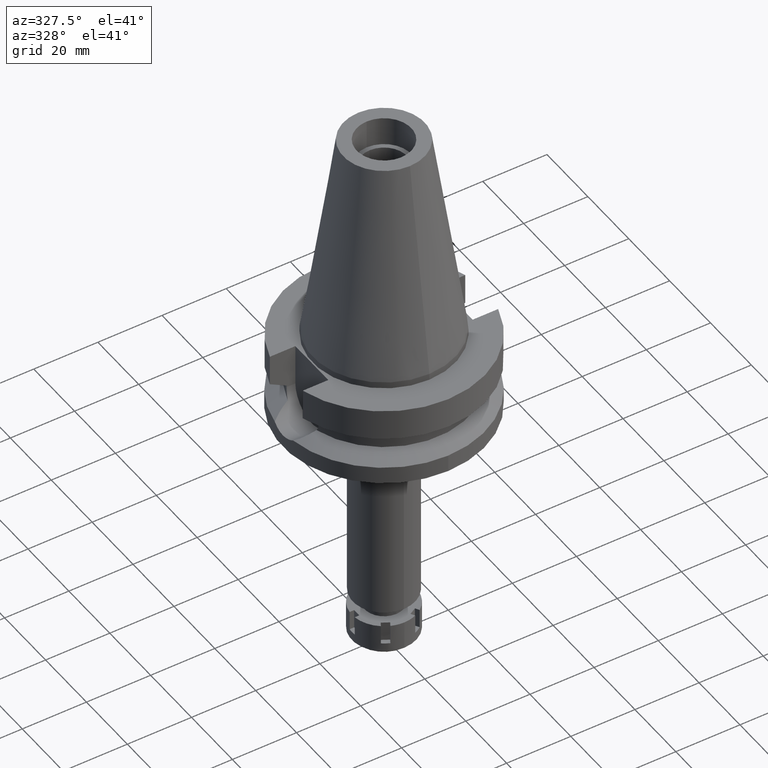
[diagram: clean part render]
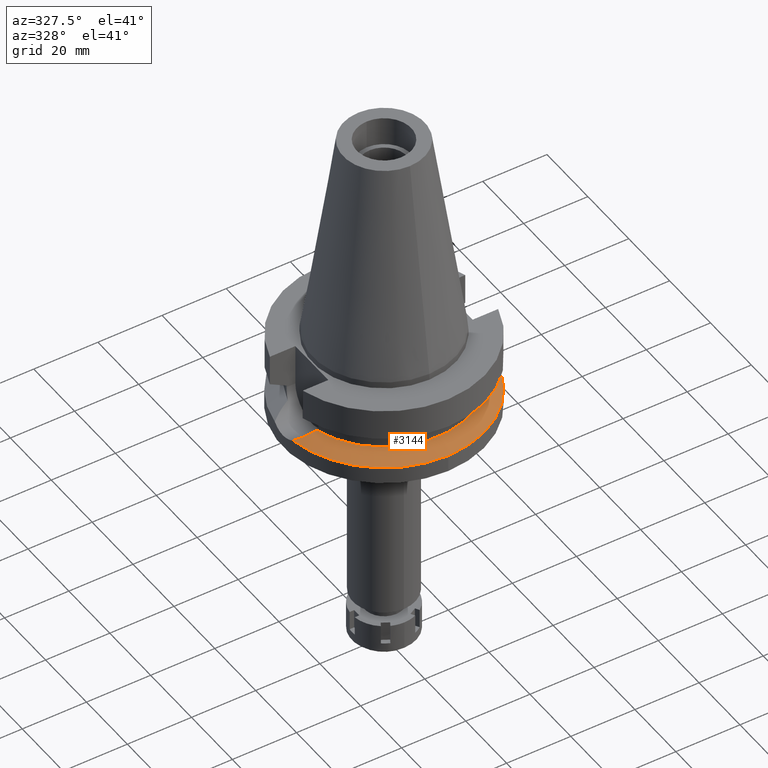
[diagram: same view with one face highlighted and labeled with its STEP entity id]
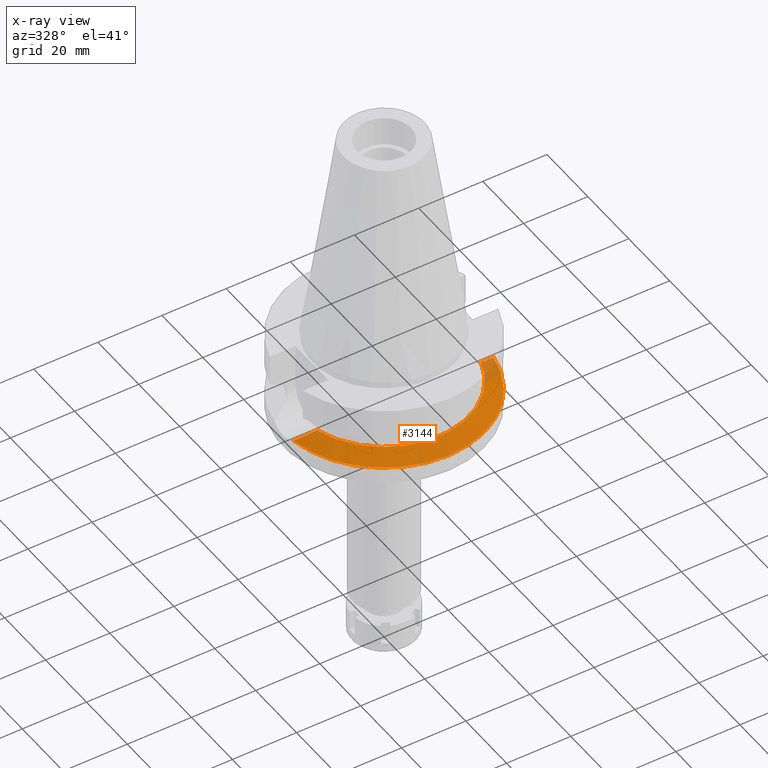
[diagram: x-ray of the same camera — body ghosted, the highlighted face saturated]
A machine part, auxiliary view. The second image highlights one B-rep face of the part: STEP entity #3144.
The next image is the same camera in x-ray: the body ghosted, the highlighted face saturated — about 6% of this face is hidden behind the body in this view.
In plain terms, the highlighted conical surface has half-angle 60 deg.
Its self-contained STEP definition (entity closure, byte-faithful):
#14 = CARTESIAN_POINT ( 'NONE',  ( 27.73420452145530746, -6.390199378870547342, -19.87732852334688260 ) ) ;
#29 = CARTESIAN_POINT ( 'NONE',  ( 28.51705538140707930, -6.035308759194434991, -20.27697739335165394 ) ) ;
#74 = CARTESIAN_POINT ( 'NONE',  ( 30.83537404011412519, -4.746233548673917113, -21.45955706954531550 ) ) ;
#324 = CARTESIAN_POINT ( 'NONE',  ( 28.50848302580978455, -6.039202948236852997, -20.27260121947567484 ) ) ;
#397 = CARTESIAN_POINT ( 'NONE',  ( 0.0000000000000000000, 0.0000000000000000000, -21.63449434733000132 ) ) ;
#420 = AXIS2_PLACEMENT_3D ( 'NONE', #1573, #2104, #3230 ) ;
#469 = EDGE_CURVE ( 'NONE', #3581, #1543, #3174, .T. ) ;
#477 = AXIS2_PLACEMENT_3D ( 'NONE', #397, #1170, #1520 ) ;
#511 = CARTESIAN_POINT ( 'NONE',  ( 0.0000000000000000000, 0.0000000000000000000, -18.74774300138999905 ) ) ;
#595 = EDGE_CURVE ( 'NONE', #3477, #1543, #3430, .T. ) ;
#887 = CARTESIAN_POINT ( 'NONE',  ( 25.53175183775000079, -7.097862220092999941, -18.74774300138999905 ) ) ;
#906 = CARTESIAN_POINT ( 'NONE',  ( -25.53175183775000079, -7.097862220092999941, -18.74774300138999905 ) ) ;
#940 = CARTESIAN_POINT ( 'NONE',  ( 29.53455245918232208, -5.534046748872632371, -20.79621065699685190 ) ) ;
#988 = CARTESIAN_POINT ( 'NONE',  ( -28.07303045599483582, -6.231477259223662024, -20.04929066011072436 ) ) ;
#1024 = CARTESIAN_POINT ( 'NONE',  ( -27.73071213541357594, -6.368313747511982648, -19.87433278653380597 ) ) ;
#1170 = DIRECTION ( 'NONE',  ( 0.0000000000000000000, 0.0000000000000000000, -1.000000000000000000 ) ) ;
#1172 = ORIENTED_EDGE ( 'NONE', *, *, #469, .F. ) ;
#1204 = CARTESIAN_POINT ( 'NONE',  ( 28.73747300959571405, -5.933579607737508255, -20.38949039745785186 ) ) ;
#1218 = ORIENTED_EDGE ( 'NONE', *, *, #2974, .F. ) ;
#1228 = EDGE_LOOP ( 'NONE', ( #2336, #1218, #3459, #1172, #3234 ) ) ;
#1294 = CARTESIAN_POINT ( 'NONE',  ( -27.17479631388649608, -6.578484872041778786, -19.59020885498357956 ) ) ;
#1310 = EDGE_CURVE ( 'NONE', #2875, #3581, #1894, .T. ) ;
#1403 = DIRECTION ( 'NONE',  ( 0.0000000000000000000, 0.0000000000000000000, 1.000000000000000000 ) ) ;
#1499 = CARTESIAN_POINT ( 'NONE',  ( 28.96943080208957610, -5.823029231412632178, -20.50787444395232484 ) ) ;
#1520 = DIRECTION ( 'NONE',  ( 0.9898094849552905306, -0.1423979757318985240, 0.0000000000000000000 ) ) ;
#1543 = VERTEX_POINT ( 'NONE', #3471 ) ;
#1573 = CARTESIAN_POINT ( 'NONE',  ( 0.0000000000000000000, 0.0000000000000000000, -21.63449434733000132 ) ) ;
#1600 = CARTESIAN_POINT ( 'NONE',  ( -27.32138860090078225, -6.525077114092119324, -19.66517386216033714 ) ) ;
#1736 = CARTESIAN_POINT ( 'NONE',  ( 29.77069590617497141, -5.403749618462133419, -20.91666371950630676 ) ) ;
#1773 = CARTESIAN_POINT ( 'NONE',  ( 26.74394240269356260, -6.764651805514314553, -19.37050278584302632 ) ) ;
#1829 = AXIS2_PLACEMENT_3D ( 'NONE', #2982, #3016, #2731 ) ;
#1836 = CARTESIAN_POINT ( 'NONE',  ( -27.52208813054871328, -6.449185212997551098, -19.76773087253166850 ) ) ;
#1889 = CONICAL_SURFACE ( 'NONE', #1829, 29.00000000000000000, 1.047197551196400456 ) ;
#1894 = B_SPLINE_CURVE_WITH_KNOTS ( 'NONE', 3,
 ( #1910, #3546, #2748, #3582, #988, #1024, #2999, #3239, #2682, #1836, #3565, #2970, #1600, #1294, #2129, #2823, #906 ),
 .UNSPECIFIED., .F., .F.,
 ( 4, 2, 2, 1, 2, 2, 1, 1, 2, 4 ),
 ( 0.0000000000000000000, 0.4999999999999709122, 0.6249999999999635847, 0.6562499999999618083, 0.6640624999999622524, 0.6679687499999624745, 0.6718749999999626965, 0.6874999999999638067, 0.7499999999999709122, 1.000000000000000000 ),
 .UNSPECIFIED. ) ;
#1910 = CARTESIAN_POINT ( 'NONE',  ( -31.17899877608999759, -4.485536235554000051, -21.63449434733000132 ) ) ;
#1972 = DIRECTION ( 'NONE',  ( 0.0000000000000000000, -1.000000000000000000, 0.0000000000000000000 ) ) ;
#2007 = CARTESIAN_POINT ( 'NONE',  ( 28.61938846649091062, -5.988472637559896228, -20.32921607281073406 ) ) ;
#2060 = CIRCLE ( 'NONE', #477, 31.50000000000001421 ) ;
#2104 = DIRECTION ( 'NONE',  ( 0.0000000000000000000, 0.0000000000000000000, -1.000000000000000000 ) ) ;
#2129 = CARTESIAN_POINT ( 'NONE',  ( -26.57871530589590847, -6.789445865070073971, -19.28519869418854427 ) ) ;
#2300 = CARTESIAN_POINT ( 'NONE',  ( 28.55982014890424736, -6.015818485181057440, -20.29880833513720262 ) ) ;
#2336 = ORIENTED_EDGE ( 'NONE', *, *, #3077, .F. ) ;
#2577 = CARTESIAN_POINT ( 'NONE',  ( 30.44045587248119489, -5.010825638254746472, -21.25823225286525542 ) ) ;
#2634 = CARTESIAN_POINT ( 'NONE',  ( -25.53175183775000079, -7.097862220092999941, -18.74774300138999905 ) ) ;
#2638 = AXIS2_PLACEMENT_3D ( 'NONE', #511, #1403, #1972 ) ;
#2658 = FACE_OUTER_BOUND ( 'NONE', #1228, .T. ) ;
#2682 = CARTESIAN_POINT ( 'NONE',  ( -27.53084578078594546, -6.445841205056501266, -19.77220513302248506 ) ) ;
#2731 = DIRECTION ( 'NONE',  ( 0.0000000000000000000, -1.000000000000000000, 0.0000000000000000000 ) ) ;
#2748 = CARTESIAN_POINT ( 'NONE',  ( -29.60938552045737993, -5.537088850422747122, -20.83473554663264693 ) ) ;
#2823 = CARTESIAN_POINT ( 'NONE',  ( -26.07077254771644448, -6.949694663414055285, -19.02466350454010424 ) ) ;
#2858 = CARTESIAN_POINT ( 'NONE',  ( 31.17899877608999759, -4.485536235554000051, -21.63449434733000132 ) ) ;
#2875 = VERTEX_POINT ( 'NONE', #3158 ) ;
#2893 = CARTESIAN_POINT ( 'NONE',  ( 31.17899877608999759, -4.485536235554000051, -21.63449434733000132 ) ) ;
#2970 = CARTESIAN_POINT ( 'NONE',  ( -27.47212379822513384, -6.468208982695001552, -19.74220275458748830 ) ) ;
#2974 = EDGE_CURVE ( 'NONE', #3477, #3641, #2060, .T. ) ;
#2982 = CARTESIAN_POINT ( 'NONE',  ( 0.0000000000000000000, 0.0000000000000000000, -20.19111867435999841 ) ) ;
#2999 = CARTESIAN_POINT ( 'NONE',  ( -27.64437422519490539, -6.402238637475959671, -19.83021063446282639 ) ) ;
#3016 = DIRECTION ( 'NONE',  ( 0.0000000000000000000, 0.0000000000000000000, -1.000000000000000000 ) ) ;
#3077 = EDGE_CURVE ( 'NONE', #3641, #2875, #3248, .T. ) ;
#3131 = CARTESIAN_POINT ( 'NONE',  ( 28.52990452730869464, -6.029465597264314525, -20.28353682246294909 ) ) ;
#3144 = ADVANCED_FACE ( 'NONE', ( #2658 ), #1889, .T. ) ;
#3158 = CARTESIAN_POINT ( 'NONE',  ( -31.17899877608999759, -4.485536235554000051, -21.63449434733000132 ) ) ;
#3170 = CARTESIAN_POINT ( 'NONE',  ( 28.50289228599840641, -6.041739379570798540, -20.26974713456323229 ) ) ;
#3174 = CIRCLE ( 'NONE', #2638, 26.50000000000000000 ) ;
#3210 = CARTESIAN_POINT ( 'NONE',  ( 0.0000000000000000000, -31.50000000000000000, -21.63449434733000132 ) ) ;
#3230 = DIRECTION ( 'NONE',  ( 0.0000000000000000000, -1.000000000000000000, 0.0000000000000000000 ) ) ;
#3234 = ORIENTED_EDGE ( 'NONE', *, *, #1310, .F. ) ;
#3239 = CARTESIAN_POINT ( 'NONE',  ( -27.55708840238456148, -6.435796169138313871, -19.78561293036529634 ) ) ;
#3248 = CIRCLE ( 'NONE', #420, 31.50000000000000000 ) ;
#3408 = CARTESIAN_POINT ( 'NONE',  ( 29.16102311408666026, -5.727101285403942477, -20.60563573614795274 ) ) ;
#3430 = B_SPLINE_CURVE_WITH_KNOTS ( 'NONE', 3,
 ( #2893, #74, #2577, #1736, #940, #3408, #1499, #1204, #2007, #2300, #3131, #29, #324, #3170, #14, #1773, #887 ),
 .UNSPECIFIED., .F., .F.,
 ( 4, 2, 2, 1, 1, 1, 1, 1, 2, 2, 4 ),
 ( 0.0000000000000000000, 0.2499999999999443223, 0.3749999999999167888, 0.4374999999999025224, 0.4687499999998953060, 0.4843749999998922529, 0.4921874999998908651, 0.4960937499998897549, 0.4980468749998889222, 0.4999999999998880895, 1.000000000000000000 ),
 .UNSPECIFIED. ) ;
#3459 = ORIENTED_EDGE ( 'NONE', *, *, #595, .T. ) ;
#3471 = CARTESIAN_POINT ( 'NONE',  ( 25.53175183775000079, -7.097862220092999941, -18.74774300138999905 ) ) ;
#3477 = VERTEX_POINT ( 'NONE', #2858 ) ;
#3546 = CARTESIAN_POINT ( 'NONE',  ( -30.47184514778461661, -5.022031521140720933, -21.27448670596790237 ) ) ;
#3565 = CARTESIAN_POINT ( 'NONE',  ( -27.50782344615707231, -6.454623173422270987, -19.76044284456339639 ) ) ;
#3581 = VERTEX_POINT ( 'NONE', #2634 ) ;
#3582 = CARTESIAN_POINT ( 'NONE',  ( -28.33717848752098689, -6.118370833635566441, -20.18435513497816913 ) ) ;
#3641 = VERTEX_POINT ( 'NONE', #3210 ) ;